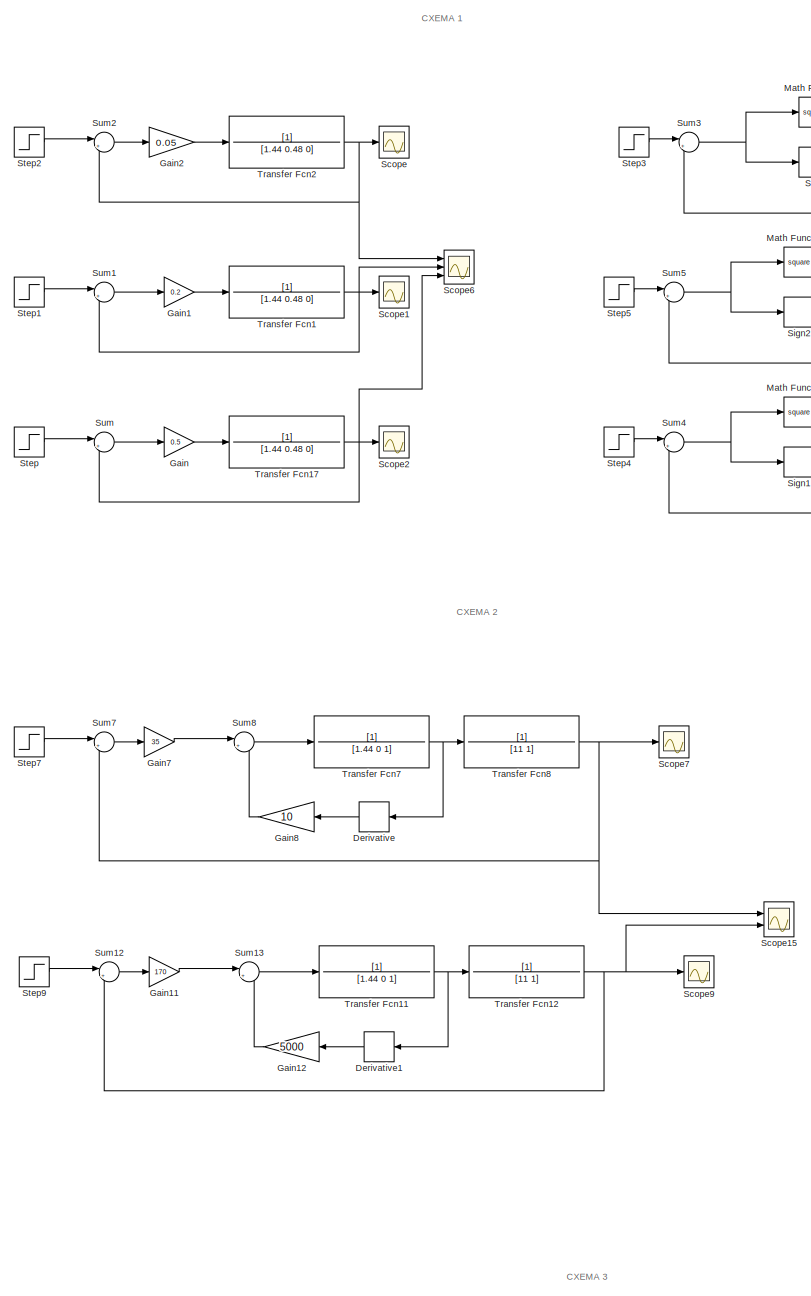
[diagram: root canvas - part 1/4, central region]
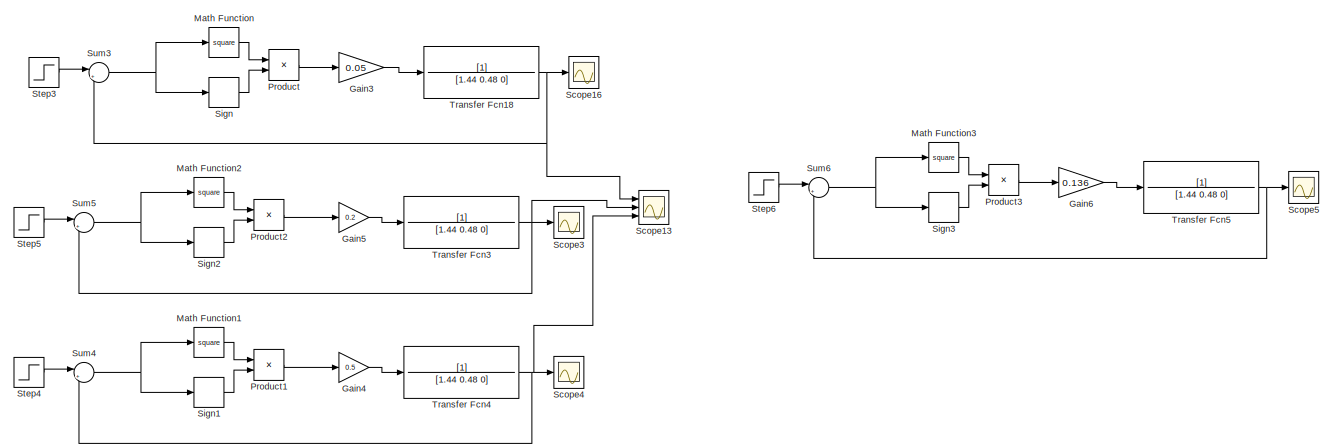
[diagram: root canvas - part 2/4, top right region]
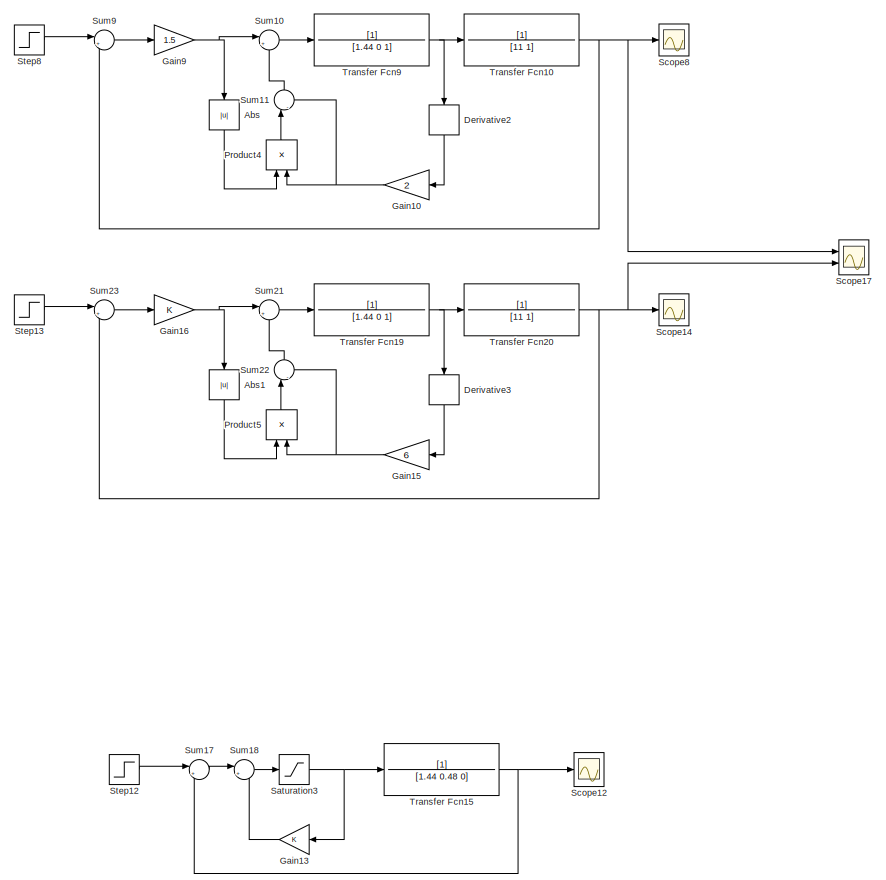
[diagram: root canvas - part 3/4, middle right region]
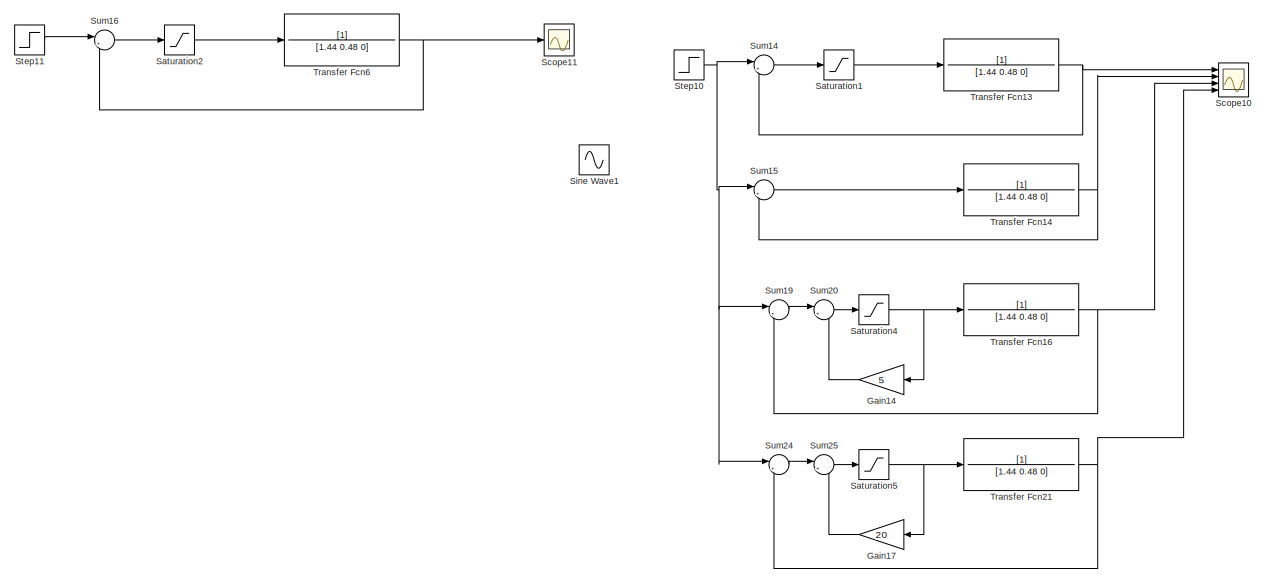
[diagram: root canvas - part 4/4, bottom left region]
MODEL slx_b0fc27eb8c2f
KIND model
CONFIG AbsTol = auto
CONFIG EnableMultiTasking = off
CONFIG FixedStep = 1e-4
CONFIG MaxStep = auto
CONFIG MinStep = auto
CONFIG RelTol = 1e-3
CONFIG SampleTimeConstraint = Unconstrained
CONFIG SolverName = FixedStepAuto
CONFIG StartTime = 0.0
CONFIG StopTime = 60
BLOCK [Abs] Abs
  Commented = on
  NameLocation = left
  SaturateOnIntegerOverflow = off
BLOCK [Abs] Abs1
  Commented = on
  NameLocation = left
  SaturateOnIntegerOverflow = off
BLOCK [Derivative] Derivative
  Commented = on
  NameLocation = top
BLOCK [Derivative] Derivative1
  Commented = on
  NameLocation = top
BLOCK [Derivative] Derivative2
  Commented = on
  NameLocation = left
BLOCK [Derivative] Derivative3
  Commented = on
  NameLocation = left
BLOCK [Gain] Gain
  Commented = on
  Gain = 0.5
BLOCK [Gain] Gain1
  Commented = on
  Gain = 0.2
BLOCK [Gain] Gain10
  Commented = on
  Gain = 2
  NameLocation = top
BLOCK [Gain] Gain11
  Commented = on
  Gain = 170
BLOCK [Gain] Gain12
  Commented = on
  Gain = 5000
  NameLocation = top
BLOCK [Gain] Gain13
  NameLocation = top
BLOCK [Gain] Gain14
  Gain = 5
  NameLocation = top
BLOCK [Gain] Gain15
  Commented = on
  Gain = 6
  NameLocation = top
BLOCK [Gain] Gain16
  Commented = on
BLOCK [Gain] Gain17
  Gain = 20
  NameLocation = top
BLOCK [Gain] Gain2
  Commented = on
  Gain = 0.05
BLOCK [Gain] Gain3
  Commented = on
  Gain = 0.05
BLOCK [Gain] Gain4
  Commented = on
  Gain = 0.5
BLOCK [Gain] Gain5
  Commented = on
  Gain = 0.2
BLOCK [Gain] Gain6
  Commented = on
  Gain = 0.136
BLOCK [Gain] Gain7
  Commented = on
  Gain = 35
BLOCK [Gain] Gain8
  Commented = on
  Gain = 10
  NameLocation = top
BLOCK [Gain] Gain9
  Commented = on
  Gain = 1.5
BLOCK [Math] Math Function
  Commented = on
  Operator = square
  Ports = [1, 1]
BLOCK [Math] Math Function1
  Commented = on
  Operator = square
  Ports = [1, 1]
BLOCK [Math] Math Function2
  Commented = on
  Operator = square
  Ports = [1, 1]
BLOCK [Math] Math Function3
  Commented = on
  Operator = square
  Ports = [1, 1]
BLOCK [Product] Product
  Commented = on
  Ports = [2, 1]
BLOCK [Product] Product1
  Commented = on
  Ports = [2, 1]
BLOCK [Product] Product2
  Commented = on
  Ports = [2, 1]
BLOCK [Product] Product3
  Commented = on
  Ports = [2, 1]
BLOCK [Product] Product4
  Commented = on
  NameLocation = right
  Ports = [2, 1]
BLOCK [Product] Product5
  Commented = on
  NameLocation = right
  Ports = [2, 1]
BLOCK [Saturate] Saturation1
BLOCK [Saturate] Saturation2
BLOCK [Saturate] Saturation3
BLOCK [Saturate] Saturation4
BLOCK [Saturate] Saturation5
BLOCK [Scope] Scope
  Commented = on
  Floating = off
  NumInputPorts = 1
  Ports = [1]
  ScopeSpecificationString = Simulink.scopes.TimeScopeBlockCfg('CurrentConfiguration', extmgr.ConfigurationSet(extmgr.Configuration('Core','General UI',true),extmgr.Configuration('Core','Source UI',true),extmgr.Configuration('Sources','WiredSimulink',true,'DataLoggingVariableName','ScopeData1'),extmgr.Configuration('Visuals','Time Domain',true,'SerializedDisplays',{struct('MinYLimReal','-0.12498','MaxYLimReal','1.12482','YLab...<+1276ch>
BLOCK [Scope] Scope1
  Commented = on
  Floating = off
  NumInputPorts = 1
  Ports = [1]
  ScopeSpecificationString = Simulink.scopes.TimeScopeBlockCfg('CurrentConfiguration', extmgr.ConfigurationSet(extmgr.Configuration('Core','General UI',true),extmgr.Configuration('Core','Source UI',true),extmgr.Configuration('Sources','WiredSimulink',true,'DataLoggingVariableName','ScopeData2'),extmgr.Configuration('Visuals','Time Domain',true,'SerializedDisplays',{struct('MinYLimReal','-10','MaxYLimReal','10','YLabelReal',''...<+1221ch>
BLOCK [Scope] Scope10
  Floating = off
  NumInputPorts = 4
  Ports = [4]
  ScopeSpecificationString = Simulink.scopes.TimeScopeBlockCfg('CurrentConfiguration', extmgr.ConfigurationSet(extmgr.Configuration('Core','General UI',true,'FigureColor',[1 1 1]),extmgr.Configuration('Core','Source UI',true),extmgr.Configuration('Sources','WiredSimulink',true,'DataLoggingVariableName','ScopeData4'),extmgr.Configuration('Visuals','Time Domain',true,'SerializedDisplays',{struct('MinYLimReal','-1.90828','MaxYLi...<+2496ch>
BLOCK [Scope] Scope11
  Floating = off
  NumInputPorts = 1
  Ports = [1]
  ScopeSpecificationString = Simulink.scopes.TimeScopeBlockCfg('CurrentConfiguration', extmgr.ConfigurationSet(extmgr.Configuration('Core','General UI',true),extmgr.Configuration('Core','Source UI',true),extmgr.Configuration('Sources','WiredSimulink',true,'DataLoggingVariableName','ScopeData12'),extmgr.Configuration('Visuals','Time Domain',true,'SerializedDisplays',{struct('MinYLimReal','-10','MaxYLimReal','10','YLabelReal','...<+1222ch>
BLOCK [Scope] Scope12
  Floating = off
  NumInputPorts = 1
  Ports = [1]
  ScopeSpecificationString = Simulink.scopes.TimeScopeBlockCfg('CurrentConfiguration', extmgr.ConfigurationSet(extmgr.Configuration('Core','General UI',true,'FigureColor',[1 1 1]),extmgr.Configuration('Core','Source UI',true),extmgr.Configuration('Sources','WiredSimulink',true,'DataLoggingVariableName','ScopeData6'),extmgr.Configuration('Visuals','Time Domain',true,'SerializedDisplays',{struct('MinYLimReal','-1.30744','MaxYLi...<+2329ch>
BLOCK [Scope] Scope13
  Commented = on
  Floating = off
  NumInputPorts = 3
  Ports = [3]
  ScopeSpecificationString = Simulink.scopes.TimeScopeBlockCfg('CurrentConfiguration', extmgr.ConfigurationSet(extmgr.Configuration('Core','General UI',true,'FigureColor',[1 1 1]),extmgr.Configuration('Core','Source UI',true),extmgr.Configuration('Sources','WiredSimulink',true,'DataLoggingVariableName','ScopeData1'),extmgr.Configuration('Visuals','Time Domain',true,'SerializedDisplays',{struct('MinYLimReal','-0.17042','MaxYLi...<+1926ch>
BLOCK [Scope] Scope14
  Commented = on
  Floating = off
  NumInputPorts = 1
  Ports = [1]
  ScopeSpecificationString = Simulink.scopes.TimeScopeBlockCfg('CurrentConfiguration', extmgr.ConfigurationSet(extmgr.Configuration('Core','General UI',true,'FigureColor',[1 1 1]),extmgr.Configuration('Core','Source UI',true),extmgr.Configuration('Sources','WiredSimulink',true,'DataLoggingVariableName','ScopeData11'),extmgr.Configuration('Visuals','Time Domain',true,'SerializedDisplays',{struct('MinYLimReal','-0.12515','MaxYL...<+2634ch>
BLOCK [Scope] Scope15
  Commented = on
  Floating = off
  NumInputPorts = 2
  Ports = [2]
  ScopeSpecificationString = Simulink.scopes.TimeScopeBlockCfg('CurrentConfiguration', extmgr.ConfigurationSet(extmgr.Configuration('Core','General UI',true,'FigureColor',[1 1 1]),extmgr.Configuration('Core','Source UI',true),extmgr.Configuration('Sources','WiredSimulink',true,'DataLoggingVariableName','ScopeData8'),extmgr.Configuration('Visuals','Time Domain',true,'SerializedDisplays',{struct('MinYLimReal','-0.20283','MaxYLi...<+1597ch>
BLOCK [Scope] Scope16
  Commented = on
  Floating = off
  NumInputPorts = 1
  Ports = [1]
  ScopeSpecificationString = Simulink.scopes.TimeScopeBlockCfg('CurrentConfiguration', extmgr.ConfigurationSet(extmgr.Configuration('Core','General UI',true,'FigureColor',[1 1 1]),extmgr.Configuration('Core','Source UI',true),extmgr.Configuration('Sources','WiredSimulink',true,'DataLoggingVariableName','ScopeData3'),extmgr.Configuration('Visuals','Time Domain',true,'SerializedDisplays',{struct('MinYLimReal','-0.09987','MaxYLi...<+2623ch>
BLOCK [Scope] Scope17
  Commented = on
  Floating = off
  NumInputPorts = 2
  Ports = [2]
  ScopeSpecificationString = Simulink.scopes.TimeScopeBlockCfg('CurrentConfiguration', extmgr.ConfigurationSet(extmgr.Configuration('Core','General UI',true,'FigureColor',[1 1 1]),extmgr.Configuration('Core','Source UI',true),extmgr.Configuration('Sources','WiredSimulink',true,'DataLoggingVariableName','ScopeData2'),extmgr.Configuration('Visuals','Time Domain',true,'SerializedDisplays',{struct('MinYLimReal','-0.12951','MaxYLi...<+1591ch>
BLOCK [Scope] Scope2
  Commented = on
  Floating = off
  NumInputPorts = 1
  Ports = [1]
  ScopeSpecificationString = Simulink.scopes.TimeScopeBlockCfg('CurrentConfiguration', extmgr.ConfigurationSet(extmgr.Configuration('Core','General UI',true),extmgr.Configuration('Core','Source UI',true),extmgr.Configuration('Sources','WiredSimulink',true,'DataLoggingVariableName','ScopeData3'),extmgr.Configuration('Visuals','Time Domain',true,'SerializedDisplays',{struct('MinYLimReal','-10','MaxYLimReal','10','YLabelReal',''...<+1221ch>
BLOCK [Scope] Scope3
  Commented = on
  Floating = off
  NumInputPorts = 1
  Ports = [1]
  ScopeSpecificationString = Simulink.scopes.TimeScopeBlockCfg('CurrentConfiguration', extmgr.ConfigurationSet(extmgr.Configuration('Core','General UI',true,'FigureColor',[1 1 1]),extmgr.Configuration('Core','Source UI',true),extmgr.Configuration('Sources','WiredSimulink',true,'DataLoggingVariableName','ScopeData4'),extmgr.Configuration('Visuals','Time Domain',true,'SerializedDisplays',{struct('MinYLimReal','-0.14675','MaxYLi...<+2607ch>
BLOCK [Scope] Scope4
  Commented = on
  Floating = off
  NumInputPorts = 1
  Ports = [1]
  ScopeSpecificationString = Simulink.scopes.TimeScopeBlockCfg('CurrentConfiguration', extmgr.ConfigurationSet(extmgr.Configuration('Core','General UI',true,'FigureColor',[1 1 1]),extmgr.Configuration('Core','Source UI',true),extmgr.Configuration('Sources','WiredSimulink',true,'DataLoggingVariableName','ScopeData5'),extmgr.Configuration('Visuals','Time Domain',true,'SerializedDisplays',{struct('MinYLimReal','-0.19578','MaxYLi...<+2281ch>
BLOCK [Scope] Scope5
  Commented = on
  Floating = off
  NumInputPorts = 1
  Ports = [1]
  ScopeSpecificationString = Simulink.scopes.TimeScopeBlockCfg('CurrentConfiguration', extmgr.ConfigurationSet(extmgr.Configuration('Core','General UI',true,'FigureColor',[1 1 1]),extmgr.Configuration('Core','Source UI',true),extmgr.Configuration('Sources','WiredSimulink',true,'DataLoggingVariableName','ScopeData6'),extmgr.Configuration('Visuals','Time Domain',true,'SerializedDisplays',{struct('MinYLimReal','-0.12466','MaxYLi...<+1560ch>
BLOCK [Scope] Scope6
  Commented = on
  Floating = off
  NumInputPorts = 3
  Ports = [3]
  ScopeSpecificationString = Simulink.scopes.TimeScopeBlockCfg('CurrentConfiguration', extmgr.ConfigurationSet(extmgr.Configuration('Core','General UI',true,'FigureColor',[1 1 1]),extmgr.Configuration('Core','Source UI',true),extmgr.Configuration('Sources','WiredSimulink',true,'DataLoggingVariableName','ScopeData4'),extmgr.Configuration('Visuals','Time Domain',true,'SerializedDisplays',{struct('MinYLimReal','-0.1745','MaxYLim...<+1935ch>
BLOCK [Scope] Scope7
  Commented = on
  Floating = off
  NumInputPorts = 1
  Ports = [1]
  ScopeSpecificationString = Simulink.scopes.TimeScopeBlockCfg('CurrentConfiguration', extmgr.ConfigurationSet(extmgr.Configuration('Core','General UI',true,'FigureColor',[1 1 1]),extmgr.Configuration('Core','Source UI',true),extmgr.Configuration('Sources','WiredSimulink',true,'DataLoggingVariableName','ScopeData1'),extmgr.Configuration('Visuals','Time Domain',true,'SerializedDisplays',{struct('MinYLimReal','-0.12515','MaxYLi...<+2633ch>
BLOCK [Scope] Scope8
  Commented = on
  Floating = off
  NumInputPorts = 1
  Ports = [1]
  ScopeSpecificationString = Simulink.scopes.TimeScopeBlockCfg('CurrentConfiguration', extmgr.ConfigurationSet(extmgr.Configuration('Core','General UI',true,'FigureColor',[1 1 1]),extmgr.Configuration('Core','Source UI',true),extmgr.Configuration('Sources','WiredSimulink',true,'DataLoggingVariableName','ScopeData10'),extmgr.Configuration('Visuals','Time Domain',true,'SerializedDisplays',{struct('MinYLimReal','-0.12515','MaxYL...<+2634ch>
BLOCK [Scope] Scope9
  Commented = on
  Floating = off
  NumInputPorts = 1
  Ports = [1]
  ScopeSpecificationString = Simulink.scopes.TimeScopeBlockCfg('CurrentConfiguration', extmgr.ConfigurationSet(extmgr.Configuration('Core','General UI',true,'FigureColor',[1 1 1]),extmgr.Configuration('Core','Source UI',true),extmgr.Configuration('Sources','WiredSimulink',true,'DataLoggingVariableName','ScopeData7'),extmgr.Configuration('Visuals','Time Domain',true,'SerializedDisplays',{struct('MinYLimReal','-0.12572','MaxYLi...<+1884ch>
BLOCK [Signum] Sign
  Commented = on
BLOCK [Signum] Sign1
  Commented = on
BLOCK [Signum] Sign2
  Commented = on
BLOCK [Signum] Sign3
  Commented = on
BLOCK [Sin] Sine Wave1
  Ports = [0, 1]
  SampleTime = 0
BLOCK [Step] Step
  Commented = on
  SampleTime = 0
  Time = 0
BLOCK [Step] Step1
  Commented = on
  SampleTime = 0
  Time = 0
BLOCK [Step] Step10
  After = 10
  SampleTime = 0
  Time = 0
BLOCK [Step] Step11
  After = 10
  SampleTime = 0
  Time = 0
BLOCK [Step] Step12
  After = 10
  SampleTime = 0
  Time = 0
BLOCK [Step] Step13
  Commented = on
  SampleTime = 0
  Time = 0
BLOCK [Step] Step2
  Commented = on
  SampleTime = 0
  Time = 0
BLOCK [Step] Step3
  Commented = on
  SampleTime = 0
  Time = 0
BLOCK [Step] Step4
  Commented = on
  SampleTime = 0
  Time = 0
BLOCK [Step] Step5
  Commented = on
  SampleTime = 0
  Time = 0
BLOCK [Step] Step6
  Commented = on
  SampleTime = 0
  Time = 0
BLOCK [Step] Step7
  Commented = on
  SampleTime = 0
  Time = 0
BLOCK [Step] Step8
  Commented = on
  SampleTime = 0
  Time = 0
BLOCK [Step] Step9
  Commented = on
  SampleTime = 0
  Time = 0
BLOCK [Sum] Sum
  Commented = on
  Inputs = |+-
  Ports = [2, 1]
BLOCK [Sum] Sum1
  Commented = on
  Inputs = |+-
  Ports = [2, 1]
BLOCK [Sum] Sum10
  Commented = on
  Inputs = |+-
  Ports = [2, 1]
BLOCK [Sum] Sum11
  Commented = on
  Inputs = |-+
  NameLocation = right
  Ports = [2, 1]
BLOCK [Sum] Sum12
  Commented = on
  Inputs = |+-
  Ports = [2, 1]
BLOCK [Sum] Sum13
  Commented = on
  Inputs = |+-
  Ports = [2, 1]
BLOCK [Sum] Sum14
  Inputs = |+-
  Ports = [2, 1]
BLOCK [Sum] Sum15
  Inputs = |+-
  Ports = [2, 1]
BLOCK [Sum] Sum16
  Inputs = |+-
  Ports = [2, 1]
BLOCK [Sum] Sum17
  Inputs = |+-
  Ports = [2, 1]
BLOCK [Sum] Sum18
  Inputs = |+-
  Ports = [2, 1]
BLOCK [Sum] Sum19
  Inputs = |+-
  Ports = [2, 1]
BLOCK [Sum] Sum2
  Commented = on
  Inputs = |+-
  Ports = [2, 1]
BLOCK [Sum] Sum20
  Inputs = |+-
  Ports = [2, 1]
BLOCK [Sum] Sum21
  Commented = on
  Inputs = |+-
  Ports = [2, 1]
BLOCK [Sum] Sum22
  Commented = on
  Inputs = |-+
  NameLocation = right
  Ports = [2, 1]
BLOCK [Sum] Sum23
  Commented = on
  Inputs = |+-
  Ports = [2, 1]
BLOCK [Sum] Sum24
  Inputs = |+-
  Ports = [2, 1]
BLOCK [Sum] Sum25
  Inputs = |+-
  Ports = [2, 1]
BLOCK [Sum] Sum3
  Commented = on
  Inputs = |+-
  Ports = [2, 1]
BLOCK [Sum] Sum4
  Commented = on
  Inputs = |+-
  Ports = [2, 1]
BLOCK [Sum] Sum5
  Commented = on
  Inputs = |+-
  Ports = [2, 1]
BLOCK [Sum] Sum6
  Commented = on
  Inputs = |+-
  Ports = [2, 1]
BLOCK [Sum] Sum7
  Commented = on
  Inputs = |+-
  Ports = [2, 1]
BLOCK [Sum] Sum8
  Commented = on
  Inputs = |+-
  Ports = [2, 1]
BLOCK [Sum] Sum9
  Commented = on
  Inputs = |+-
  Ports = [2, 1]
BLOCK [TransferFcn] Transfer Fcn1
  Commented = on
  Denominator = [1.44 0.48 0]
BLOCK [TransferFcn] Transfer Fcn10
  Commented = on
  Denominator = [11 1]
BLOCK [TransferFcn] Transfer Fcn11
  Commented = on
  Denominator = [1.44 0 1]
BLOCK [TransferFcn] Transfer Fcn12
  Commented = on
  Denominator = [11 1]
BLOCK [TransferFcn] Transfer Fcn13
  Denominator = [1.44 0.48 0]
BLOCK [TransferFcn] Transfer Fcn14
  Denominator = [1.44 0.48 0]
BLOCK [TransferFcn] Transfer Fcn15
  Denominator = [1.44 0.48 0]
BLOCK [TransferFcn] Transfer Fcn16
  Denominator = [1.44 0.48 0]
BLOCK [TransferFcn] Transfer Fcn17
  Commented = on
  Denominator = [1.44 0.48 0]
BLOCK [TransferFcn] Transfer Fcn18
  Commented = on
  Denominator = [1.44 0.48 0]
BLOCK [TransferFcn] Transfer Fcn19
  Commented = on
  Denominator = [1.44 0 1]
BLOCK [TransferFcn] Transfer Fcn2
  Commented = on
  Denominator = [1.44 0.48 0]
BLOCK [TransferFcn] Transfer Fcn20
  Commented = on
  Denominator = [11 1]
BLOCK [TransferFcn] Transfer Fcn21
  Denominator = [1.44 0.48 0]
BLOCK [TransferFcn] Transfer Fcn3
  Commented = on
  Denominator = [1.44 0.48 0]
BLOCK [TransferFcn] Transfer Fcn4
  Commented = on
  Denominator = [1.44 0.48 0]
BLOCK [TransferFcn] Transfer Fcn5
  Commented = on
  Denominator = [1.44 0.48 0]
BLOCK [TransferFcn] Transfer Fcn6
  Denominator = [1.44 0.48 0]
BLOCK [TransferFcn] Transfer Fcn7
  Commented = on
  Denominator = [1.44 0 1]
BLOCK [TransferFcn] Transfer Fcn8
  Commented = on
  Denominator = [11 1]
BLOCK [TransferFcn] Transfer Fcn9
  Commented = on
  Denominator = [1.44 0 1]
ANNOTATION (root): СХЕМА 1
ANNOTATION (root): СХЕМА 2
ANNOTATION (root): СХЕМА 3
LINE Abs1:1 -> Product5:1
LINE Abs:1 -> Product4:1
LINE Derivative1:1 -> Gain12:1
LINE Derivative2:1 -> Gain10:1
LINE Derivative3:1 -> Gain15:1
LINE Derivative:1 -> Gain8:1
NET Gain10:1 -> Product4:2, Sum11:2
LINE Gain11:1 -> Sum13:1
LINE Gain12:1 -> Sum13:2
LINE Gain13:1 -> Sum18:2
LINE Gain14:1 -> Sum20:2
NET Gain15:1 -> Product5:2, Sum22:2
NET Gain16:1 -> Abs1:1, Sum21:1
LINE Gain17:1 -> Sum25:2
LINE Gain1:1 -> Transfer Fcn1:1
LINE Gain2:1 -> Transfer Fcn2:1
LINE Gain3:1 -> Transfer Fcn18:1
LINE Gain4:1 -> Transfer Fcn4:1
LINE Gain5:1 -> Transfer Fcn3:1
LINE Gain6:1 -> Transfer Fcn5:1
LINE Gain7:1 -> Sum8:1
LINE Gain8:1 -> Sum8:2
NET Gain9:1 -> Abs:1, Sum10:1
LINE Gain:1 -> Transfer Fcn17:1
LINE Math Function1:1 -> Product1:1
LINE Math Function2:1 -> Product2:1
LINE Math Function3:1 -> Product3:1
LINE Math Function:1 -> Product:1
LINE Product1:1 -> Gain4:1
LINE Product2:1 -> Gain5:1
LINE Product3:1 -> Gain6:1
LINE Product4:1 -> Sum11:1
LINE Product5:1 -> Sum22:1
LINE Product:1 -> Gain3:1
LINE Saturation1:1 -> Transfer Fcn13:1
LINE Saturation2:1 -> Transfer Fcn6:1
NET Saturation3:1 -> Gain13:1, Transfer Fcn15:1
NET Saturation4:1 -> Gain14:1, Transfer Fcn16:1
NET Saturation5:1 -> Gain17:1, Transfer Fcn21:1
LINE Sign1:1 -> Product1:2
LINE Sign2:1 -> Product2:2
LINE Sign3:1 -> Product3:2
LINE Sign:1 -> Product:2
NET Step10:1 -> Sum14:1, Sum15:1, Sum19:1, Sum24:1
LINE Step11:1 -> Sum16:1
LINE Step12:1 -> Sum17:1
LINE Step13:1 -> Sum23:1
LINE Step1:1 -> Sum1:1
LINE Step2:1 -> Sum2:1
LINE Step3:1 -> Sum3:1
LINE Step4:1 -> Sum4:1
LINE Step5:1 -> Sum5:1
LINE Step6:1 -> Sum6:1
LINE Step7:1 -> Sum7:1
LINE Step8:1 -> Sum9:1
LINE Step9:1 -> Sum12:1
LINE Step:1 -> Sum:1
LINE Sum10:1 -> Transfer Fcn9:1
LINE Sum11:1 -> Sum10:2
LINE Sum12:1 -> Gain11:1
LINE Sum13:1 -> Transfer Fcn11:1
LINE Sum14:1 -> Saturation1:1
LINE Sum15:1 -> Transfer Fcn14:1
LINE Sum16:1 -> Saturation2:1
LINE Sum17:1 -> Sum18:1
LINE Sum18:1 -> Saturation3:1
LINE Sum19:1 -> Sum20:1
LINE Sum1:1 -> Gain1:1
LINE Sum20:1 -> Saturation4:1
LINE Sum21:1 -> Transfer Fcn19:1
LINE Sum22:1 -> Sum21:2
LINE Sum23:1 -> Gain16:1
LINE Sum24:1 -> Sum25:1
LINE Sum25:1 -> Saturation5:1
LINE Sum2:1 -> Gain2:1
NET Sum3:1 -> Math Function:1, Sign:1
NET Sum4:1 -> Math Function1:1, Sign1:1
NET Sum5:1 -> Math Function2:1, Sign2:1
NET Sum6:1 -> Math Function3:1, Sign3:1
LINE Sum7:1 -> Gain7:1
LINE Sum8:1 -> Transfer Fcn7:1
LINE Sum9:1 -> Gain9:1
LINE Sum:1 -> Gain:1
NET Transfer Fcn10:1 -> Scope17:1, Scope8:1, Sum9:2
NET Transfer Fcn11:1 -> Derivative1:1, Transfer Fcn12:1
NET Transfer Fcn12:1 -> Scope15:2, Scope9:1, Sum12:2
NET Transfer Fcn13:1 -> Scope10:1, Sum14:2
NET Transfer Fcn14:1 -> Scope10:2, Sum15:2
NET Transfer Fcn15:1 -> Scope12:1, Sum17:2
NET Transfer Fcn16:1 -> Scope10:3, Sum19:2
NET Transfer Fcn17:1 -> Scope2:1, Scope6:3, Sum:2
NET Transfer Fcn18:1 -> Scope13:1, Scope16:1, Sum3:2
NET Transfer Fcn19:1 -> Derivative3:1, Transfer Fcn20:1
NET Transfer Fcn1:1 -> Scope1:1, Scope6:2, Sum1:2
NET Transfer Fcn20:1 -> Scope14:1, Scope17:2, Sum23:2
NET Transfer Fcn21:1 -> Scope10:4, Sum24:2
NET Transfer Fcn2:1 -> Scope6:1, Scope:1, Sum2:2
NET Transfer Fcn3:1 -> Scope13:2, Scope3:1, Sum5:2
NET Transfer Fcn4:1 -> Scope13:3, Scope4:1, Sum4:2
NET Transfer Fcn5:1 -> Scope5:1, Sum6:2
NET Transfer Fcn6:1 -> Scope11:1, Sum16:2
NET Transfer Fcn7:1 -> Derivative:1, Transfer Fcn8:1
NET Transfer Fcn8:1 -> Scope15:1, Scope7:1, Sum7:2
NET Transfer Fcn9:1 -> Derivative2:1, Transfer Fcn10:1
note: NET lines group one-source signal fan-out (src -> all destinations, sorted); 1:1 wires keep LINE
